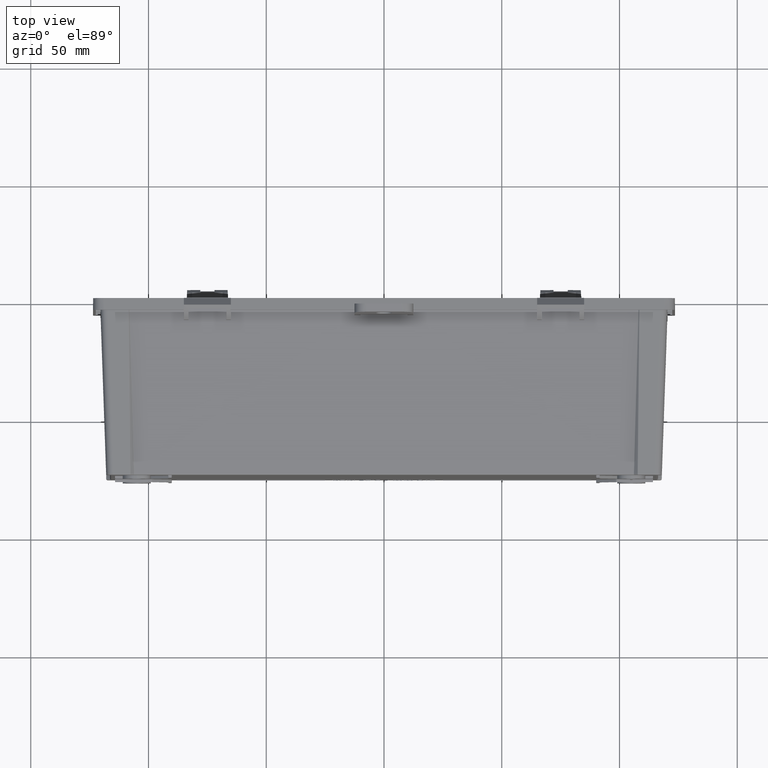
[diagram: clean part render]
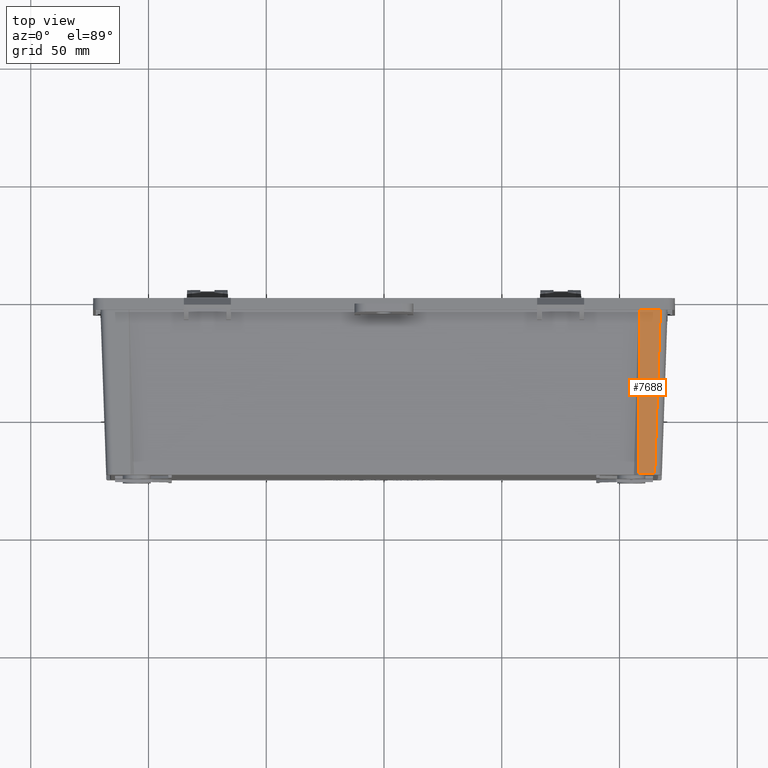
[diagram: same view with one face highlighted and labeled with its STEP entity id]
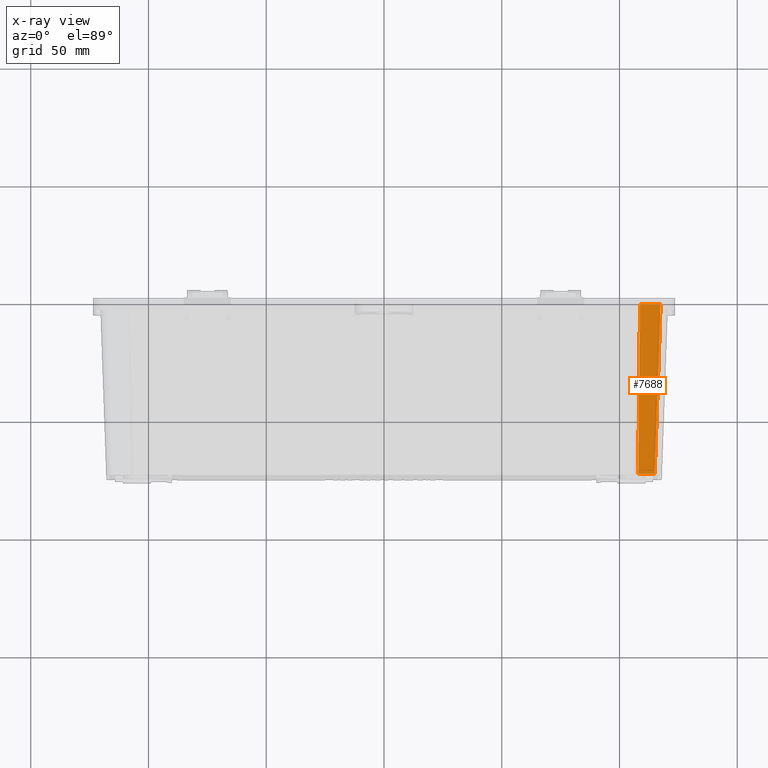
[diagram: x-ray of the same camera — body ghosted, the highlighted face saturated]
A machine part, top view. The second image highlights one B-rep face of the part: STEP entity #7688.
The next image is the same camera in x-ray: the body ghosted, the highlighted face saturated — about 0% of this face is hidden behind the body in this view.
In plain terms, the highlighted planar face has unit normal (0, -0.0349, 0.9994).
Its self-contained STEP definition (entity closure, byte-faithful):
#536 = VERTEX_POINT ( 'NONE', #47504 ) ;
#3308 = VERTEX_POINT ( 'NONE', #19278 ) ;
#3312 = VERTEX_POINT ( 'NONE', #19282 ) ;
#3313 = VERTEX_POINT ( 'NONE', #19283 ) ;
#6523 = ORIENTED_EDGE ( 'NONE', *, *, #7395, .T. ) ;
#6524 = ORIENTED_EDGE ( 'NONE', *, *, #7377, .T. ) ;
#6525 = ORIENTED_EDGE ( 'NONE', *, *, #7393, .T. ) ;
#6526 = ORIENTED_EDGE ( 'NONE', *, *, #7398, .T. ) ;
#7377 = EDGE_CURVE ( 'NONE', #536, #3308, #33423, .T. ) ;
#7393 = EDGE_CURVE ( 'NONE', #3313, #536, #33428, .T. ) ;
#7395 = EDGE_CURVE ( 'NONE', #3312, #3313, #33429, .T. ) ;
#7398 = EDGE_CURVE ( 'NONE', #3308, #3312, #33430, .T. ) ;
#7688 = ADVANCED_FACE ( 'NONE', ( #33528 ), #36840, .T. ) ;
#19278 = CARTESIAN_POINT ( 'NONE',  ( 117.4208754753137500, -2.682550251648749400, 70.41904795637106000 ) ) ;
#19282 = CARTESIAN_POINT ( 'NONE',  ( 108.6923555473441200, -2.682550251648749400, 70.41904795637106000 ) ) ;
#19283 = CARTESIAN_POINT ( 'NONE',  ( 107.9570836911959800, -74.51744974835124000, 67.91051798958383800 ) ) ;
#33423 = LINE ( 'NONE', #36503, #35853 ) ;
#33428 = LINE ( 'NONE', #36521, #35858 ) ;
#33429 = LINE ( 'NONE', #36523, #35859 ) ;
#33430 = LINE ( 'NONE', #36525, #35860 ) ;
#33528 = FACE_OUTER_BOUND ( 'NONE', #47081, .T. ) ;
#35853 = VECTOR ( 'NONE', #36504, 1000.000000000000000 ) ;
#35858 = VECTOR ( 'NONE', #36522, 1000.000000000000000 ) ;
#35859 = VECTOR ( 'NONE', #36524, 1000.000000000000100 ) ;
#35860 = VECTOR ( 'NONE', #36526, 1000.000000000000000 ) ;
#35974 = AXIS2_PLACEMENT_3D ( 'NONE', #36841, #36842, #36843 ) ;
#36503 = CARTESIAN_POINT ( 'NONE',  ( 117.2268338470354900, -8.239175466454309300, 70.22500632809280300 ) ) ;
#36504 = DIRECTION ( 'NONE',  ( 0.03487826274237469700, 0.9987827659587182900, 0.03487826274237469000 ) ) ;
#36521 = CARTESIAN_POINT ( 'NONE',  ( -119.0000000000000300, -74.51744974835124000, 67.91051798958385200 ) ) ;
#36522 = DIRECTION ( 'NONE',  ( 1.000000000000000000, 0.0000000000000000000, 0.0000000000000000000 ) ) ;
#36523 = CARTESIAN_POINT ( 'NONE',  ( 108.6959870122485800, -2.327761863849172400, 70.43143743987975800 ) ) ;
#36524 = DIRECTION ( 'NONE',  ( -0.01022880954469407300, -0.9993385432475566700, -0.03489767091296697800 ) ) ;
#36525 = CARTESIAN_POINT ( 'NONE',  ( 108.4902063994949400, -2.682550251648749400, 70.41904795637106000 ) ) ;
#36526 = DIRECTION ( 'NONE',  ( -1.000000000000000000, -0.0000000000000000000, 0.0000000000000000000 ) ) ;
#36840 = PLANE ( 'NONE',  #35974 ) ;
#36841 = CARTESIAN_POINT ( 'NONE',  ( -119.0000000000000300, 0.0000000000000000000, 70.51272467535892500 ) ) ;
#36842 = DIRECTION ( 'NONE',  ( 0.0000000000000000000, -0.03489949670250105200, 0.9993908270190957600 ) ) ;
#36843 = DIRECTION ( 'NONE',  ( 0.0000000000000000000, -0.9993908270190956500, -0.03489949670250104600 ) ) ;
#47081 = EDGE_LOOP ( 'NONE', ( #6523, #6525, #6524, #6526 ) ) ;
#47504 = CARTESIAN_POINT ( 'NONE',  ( 114.9123455085265400, -74.51744974835125400, 67.91051798958385200 ) ) ;